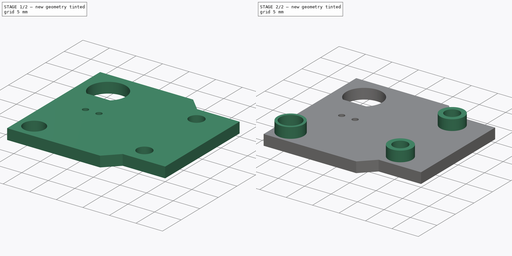
[diagram: build sequence overview — one tinted view per stage of 2, left to right]
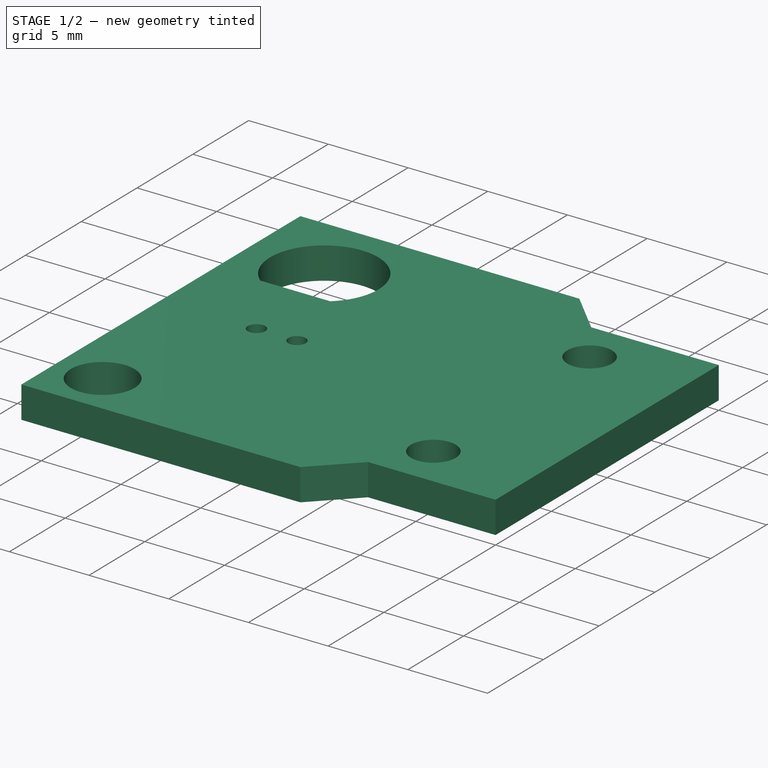
[diagram: stage 1 of 2 — iso view after this stage's code; geometry added in this stage tinted green]
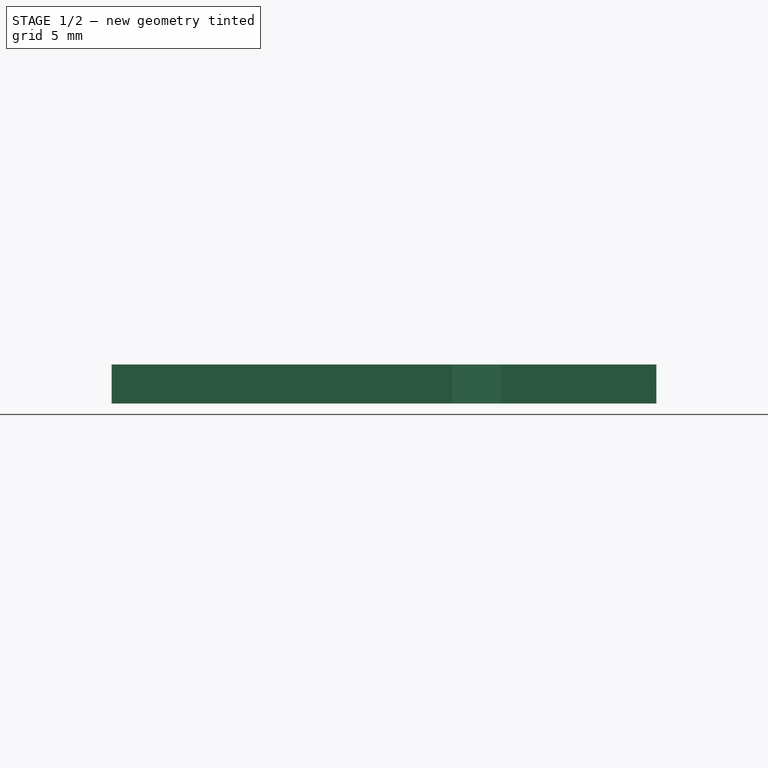
[diagram: stage 1 of 2 — front view after this stage's code; geometry added in this stage tinted green]
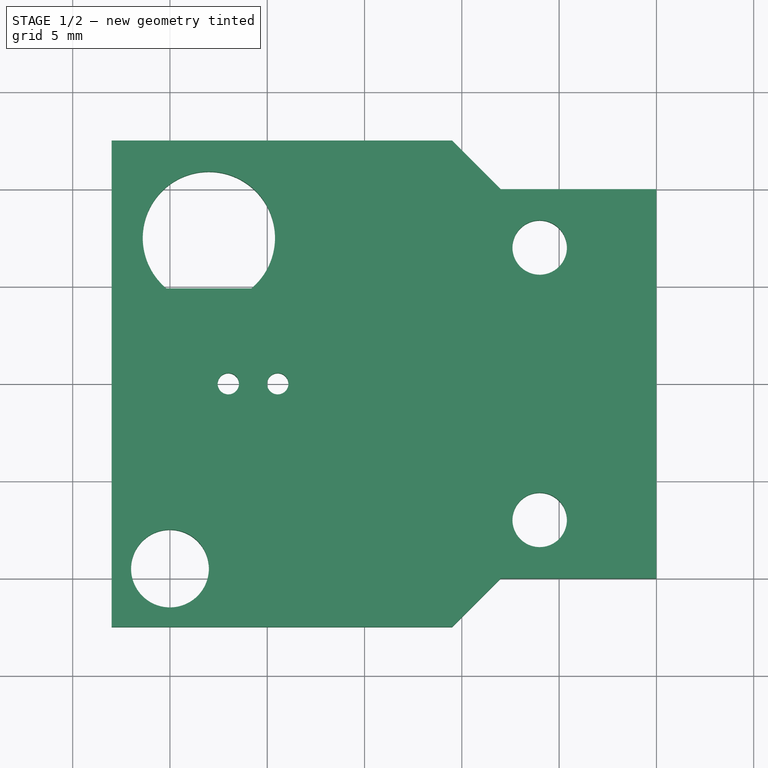
[diagram: stage 1 of 2 — top view after this stage's code; geometry added in this stage tinted green]
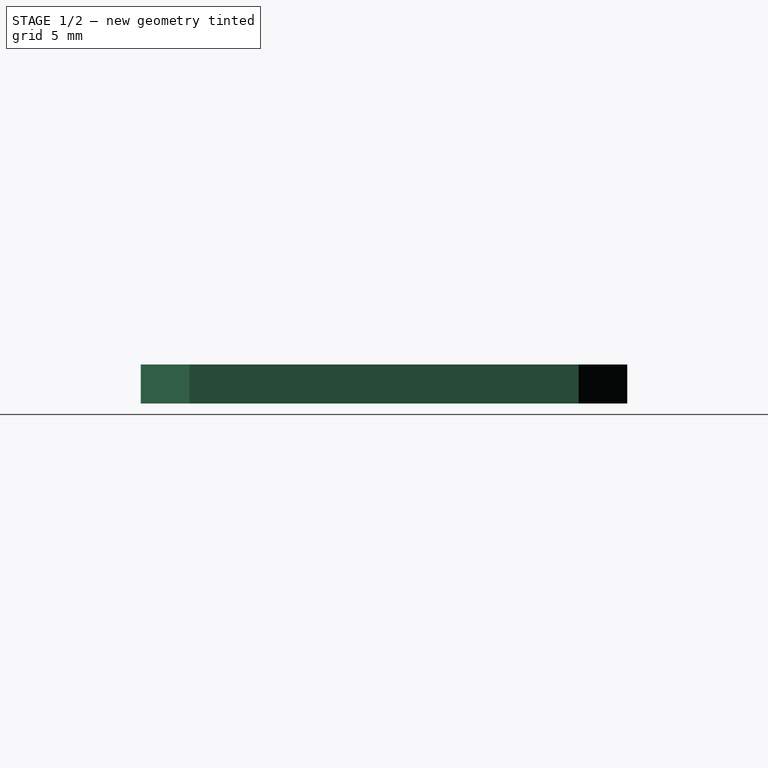
[diagram: stage 1 of 2 — right view after this stage's code; geometry added in this stage tinted green]
FCSTD DOCUMENT  (FreeCAD 0.18R4 (GitTag))
Label: LoRa-Baseplate6
License: All rights reserved
LicenseURL: http://en.wikipedia.org/wiki/All_rights_reserved
objects: Sketcher::SketchObject×2, PartDesign::Pad×2, PartDesign::Plane×1, PartDesign::Body×1
note: 8 computed .brp shape members not serialized (recipe doc carries the construction recipe); baked Part::Feature solids carry a one-line shape summary decoded from their .brp

FEATURE [Sketcher::SketchObject] Sketch
  MapMode = 5
  Support = -> [XY_Plane]
  sketch-geometry (15):
    g0: LineSegment StartX=0 StartY=10 StartZ=0 EndX=0 EndY=-10 EndZ=0
    g1: LineSegment StartX=0 StartY=-10 StartZ=0 EndX=-8 EndY=-10 EndZ=0
    g2: LineSegment StartX=-8 StartY=-10 StartZ=0 EndX=-10.5 EndY=-12.5 EndZ=0
    g3: LineSegment StartX=-10.5 StartY=-12.5 StartZ=0 EndX=-28 EndY=-12.5 EndZ=0
    g4: LineSegment StartX=-28 StartY=-12.5 StartZ=0 EndX=-28 EndY=12.5 EndZ=0
    g5: LineSegment StartX=-28 StartY=12.5 StartZ=0 EndX=-10.5 EndY=12.5 EndZ=0
    g6: LineSegment StartX=-10.5 StartY=12.5 StartZ=0 EndX=-8 EndY=10 EndZ=0
    g7: LineSegment StartX=-8 StartY=10 StartZ=0 EndX=0 EndY=10 EndZ=0
    g8: Circle CenterX=-6 CenterY=7 CenterZ=0 NormalX=0 NormalY=0 NormalZ=1 AngleXU=0 Radius=1.4
    g9: Circle CenterX=-6 CenterY=-7 CenterZ=0 NormalX=0 NormalY=0 NormalZ=1 AngleXU=0 Radius=1.4
    g10: Circle CenterX=-25 CenterY=-9.5 CenterZ=0 NormalX=0 NormalY=0 NormalZ=1 AngleXU=0 Radius=2
    g11: Circle CenterX=-22 CenterY=0 CenterZ=0 NormalX=0 NormalY=0 NormalZ=1 AngleXU=0 Radius=0.55
    g12: Circle CenterX=-19.46 CenterY=0 CenterZ=0 NormalX=0 NormalY=0 NormalZ=1 AngleXU=0 Radius=0.55
    g13: ArcOfCircle CenterX=-23 CenterY=7.5 CenterZ=0 NormalX=0 NormalY=0 NormalZ=1 AngleXU=0 Radius=3.4 StartAngle=5.4126 EndAngle=10.2954
    g14: LineSegment StartX=-25.1909 StartY=4.9 StartZ=0 EndX=-20.8091 EndY=4.9 EndZ=0
  constraints (46):
    c: PointOnObject(g0,g-2)
    c: PointOnObject(g0,g-2)
    c: Coincident(g0,g1)
    c: Horizontal(g1)
    c: Coincident(g1,g2)
    c: Coincident(g2,g3)
    c: Horizontal(g3)
    c: Coincident(g3,g4)
    c: Vertical(g4)
    c: Coincident(g4,g5)
    c: Horizontal(g5)
    c: Coincident(g5,g6)
    c: Coincident(g6,g7)
    c: Coincident(g7,g0)
    c: Parallel(g7,g1)
    c: DistanceY(g0,g0) = 20
    c: DistanceY(g0,g-1) = 10
    c: DistanceX(g1,g0) = 8
    c: Equal(g1,g7)
    c: DistanceX(g3,g1) = 20
    c: DistanceY(g4,g4) = 25
    c: Angle(g4,g6) = 0.785398
    c: Equal(g3,g5)
    c: DistanceY(g3,g-1) = 12.5
    c: Diameter(g8) = 2.8
    c: Equal(g8,g9)
    c: DistanceY(g9,g8) = 14
    c: DistanceY(g9,g-1) = 7
    c: DistanceX(g9,g0) = 6
    c: DistanceX(g8,g0) = 6
    c: Diameter(g10) = 4
    c: DistanceY(g3,g10) = 3
    c: DistanceX(g3,g10) = 3
    c: Diameter(g11) = 1.1
    c: Equal(g11,g12)
    c: DistanceX(g11,g12) = 2.54
    c: DistanceY(g-1,g12) = 0
    c: DistanceY(g12,g11) = 0
    c: DistanceX(g4,g11) = 6
    c: DistanceY(g13,g4) = 5
    c: DistanceX(g4,g13) = 5
    c: Coincident(g14,g13)
    c: Coincident(g14,g13)
    c: Parallel(g14,g5)
    c: Diameter(g13) = 6.8
    c: DistanceY(g13,g13) = 2.6
FEATURE [PartDesign::Pad] Pad
  Length = 2
  Length2 = 100
  Profile = -> Sketch
  Type = 0
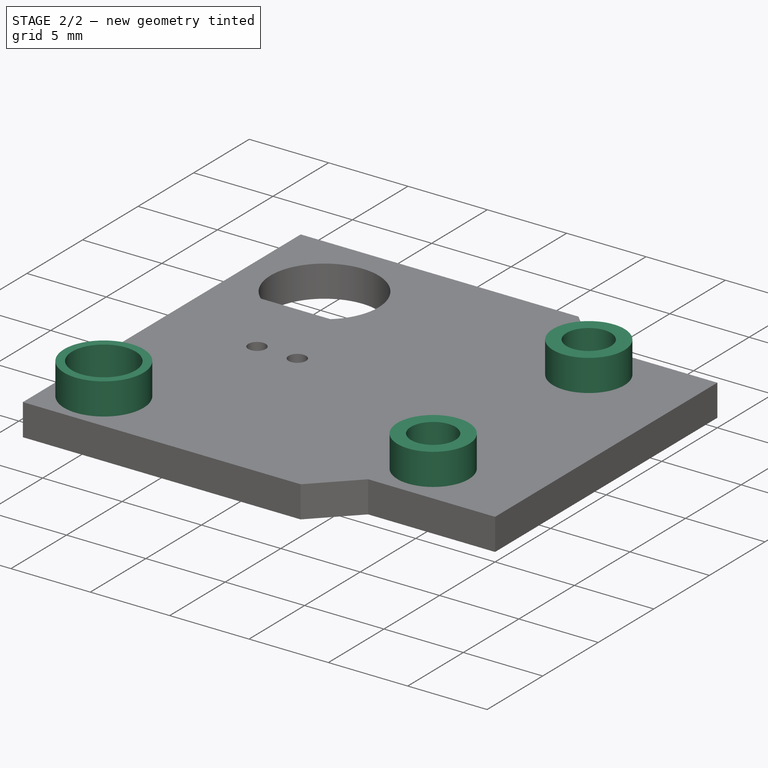
[diagram: stage 2 of 2 — iso view after this stage's code; geometry added in this stage tinted green]
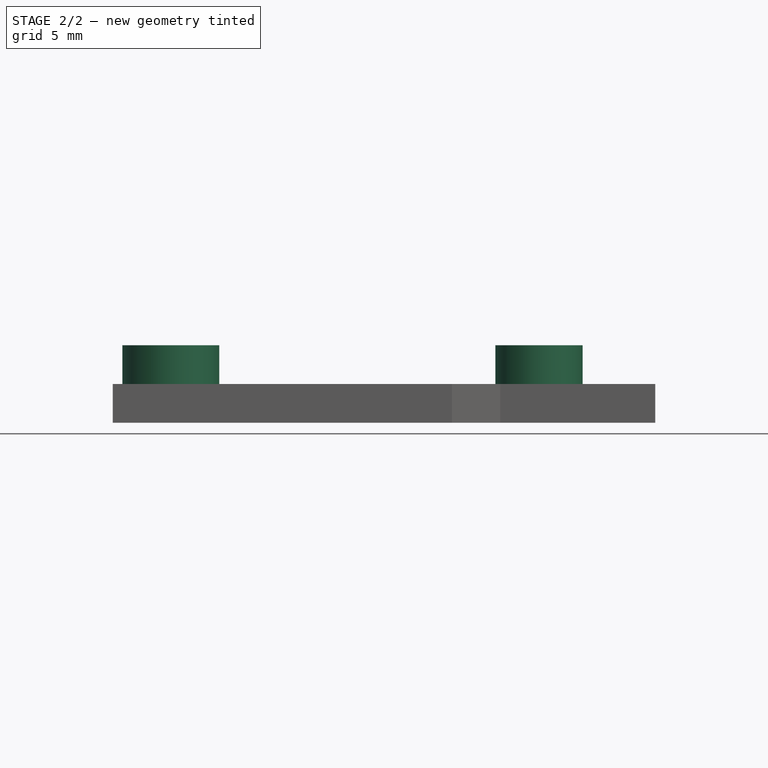
[diagram: stage 2 of 2 — front view after this stage's code; geometry added in this stage tinted green]
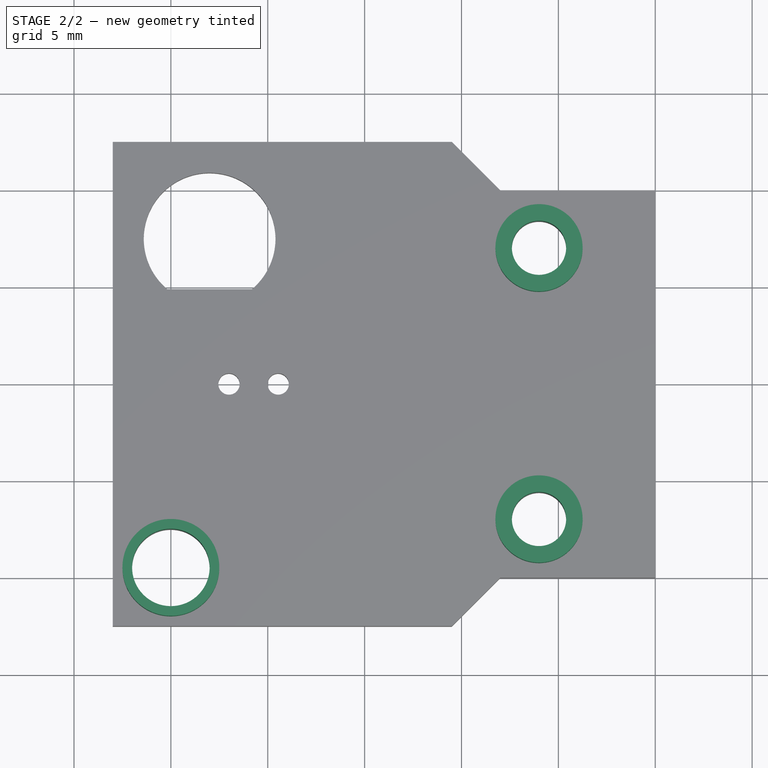
[diagram: stage 2 of 2 — top view after this stage's code; geometry added in this stage tinted green]
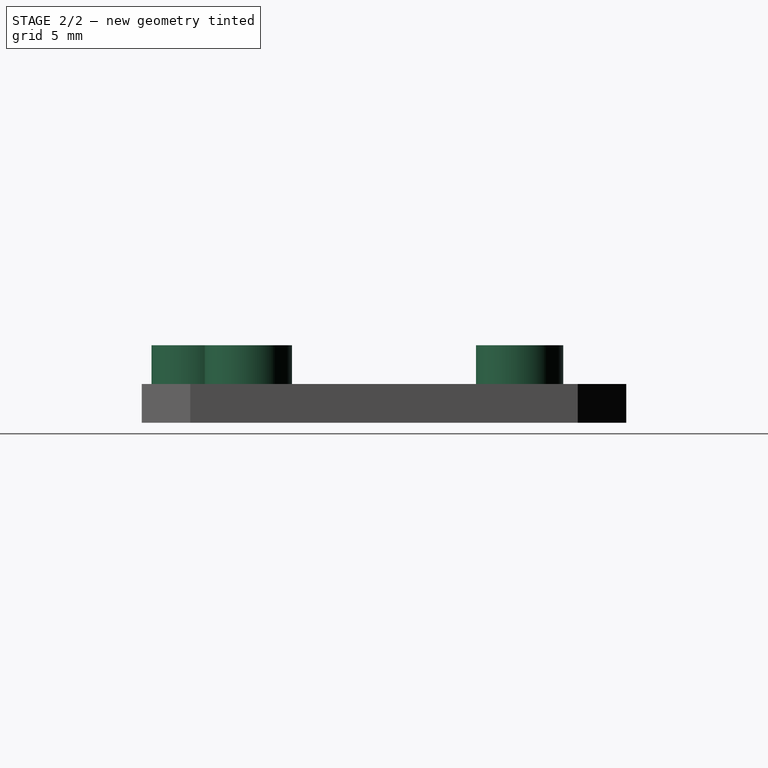
[diagram: stage 2 of 2 — right view after this stage's code; geometry added in this stage tinted green]
FEATURE [PartDesign::Plane] DatumPlane
  Length = 44.1644
  MapMode = 5
  Placement = pos=(0,0,2) rot=(0,0,1;0rad)
  ResizeMode = 0
  Support = -> [Pad]
  Width = 31.1644
FEATURE [Sketcher::SketchObject] Sketch001
  ExternalGeometry = -> [Pad]
  MapMode = 5
  Placement = pos=(0,0,2) rot=(0,0,1;0rad)
  Support = -> [DatumPlane]
  sketch-geometry (6):
    g0: Circle CenterX=-25 CenterY=-9.5 CenterZ=0 NormalX=0 NormalY=0 NormalZ=1 AngleXU=0 Radius=2
    g1: Circle CenterX=-25 CenterY=-9.5 CenterZ=0 NormalX=0 NormalY=0 NormalZ=1 AngleXU=0 Radius=2.5
    g2: Circle CenterX=-6 CenterY=-7 CenterZ=0 NormalX=0 NormalY=0 NormalZ=1 AngleXU=0 Radius=1.4
    g3: Circle CenterX=-6 CenterY=-7 CenterZ=0 NormalX=0 NormalY=0 NormalZ=1 AngleXU=0 Radius=2.25
    g4: Circle CenterX=-6 CenterY=7 CenterZ=0 NormalX=0 NormalY=0 NormalZ=1 AngleXU=0 Radius=1.4
    g5: Circle CenterX=-6 CenterY=7 CenterZ=0 NormalX=0 NormalY=0 NormalZ=1 AngleXU=0 Radius=2.25
  constraints (12):
    c: Coincident(g0,g-6)
    c: Coincident(g1,g0)
    c: Coincident(g2,g-5)
    c: Coincident(g3,g2)
    c: Coincident(g4,g-4)
    c: Coincident(g5,g4)
    c: Diameter(g4) = 2.8
    c: Diameter(g5) = 4.5
    c: Equal(g2,g4)
    c: Equal(g3,g5)
    c: Diameter(g0) = 4
    c: Diameter(g1) = 5
FEATURE [PartDesign::Pad] Pad001
  BaseFeature = -> Pad
  Length = 2
  Length2 = 100
  Profile = -> Sketch001
  Type = 0
FEATURE [PartDesign::Body] Body
  Group = -> [Sketch,Pad,DatumPlane,Sketch001,Pad001]
  Origin = -> Origin
  Tip = -> Pad001
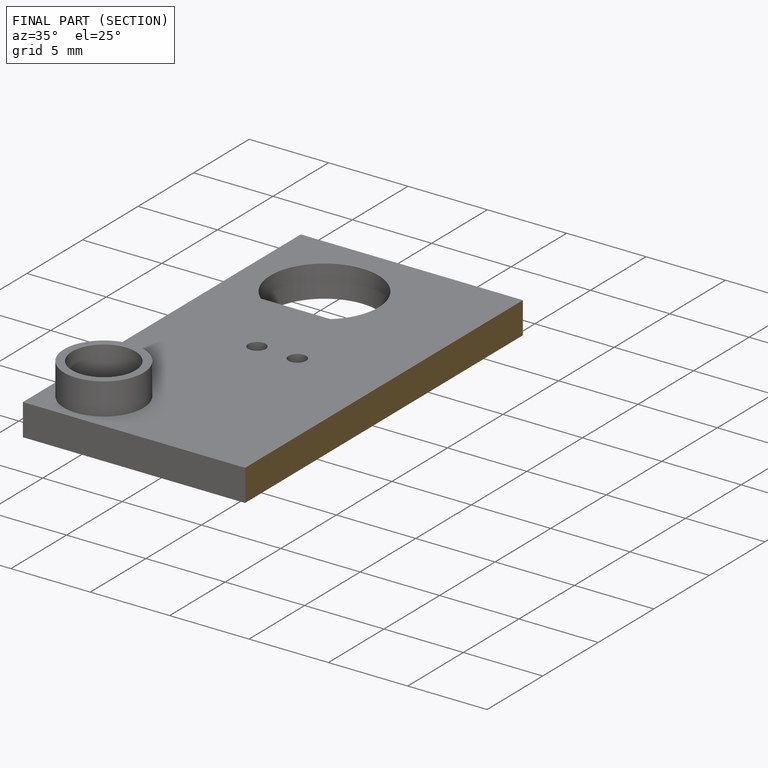
[diagram: finished part — half-section view (interior)]
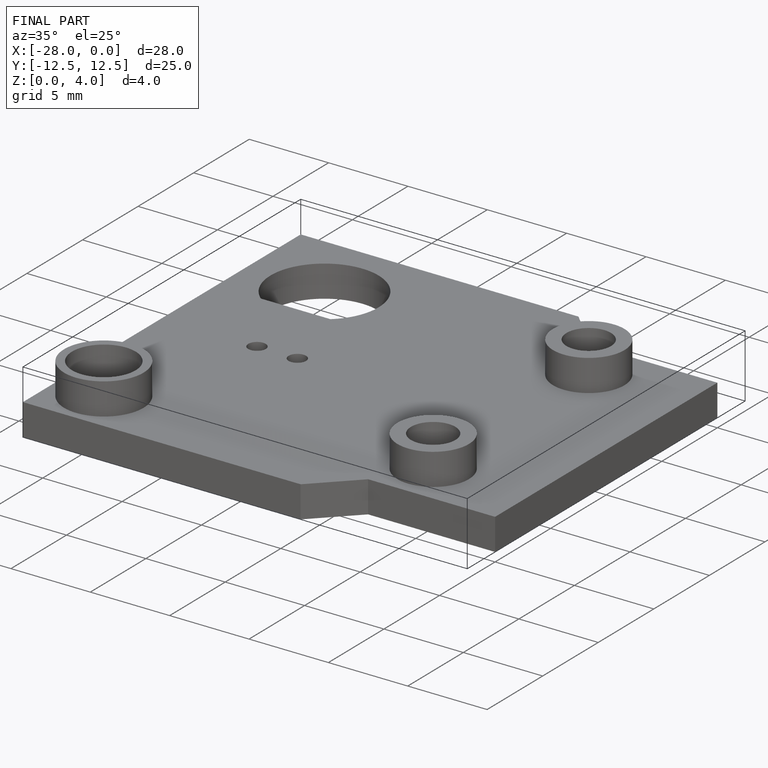
[diagram: finished part — iso view with bounding-box wireframe]
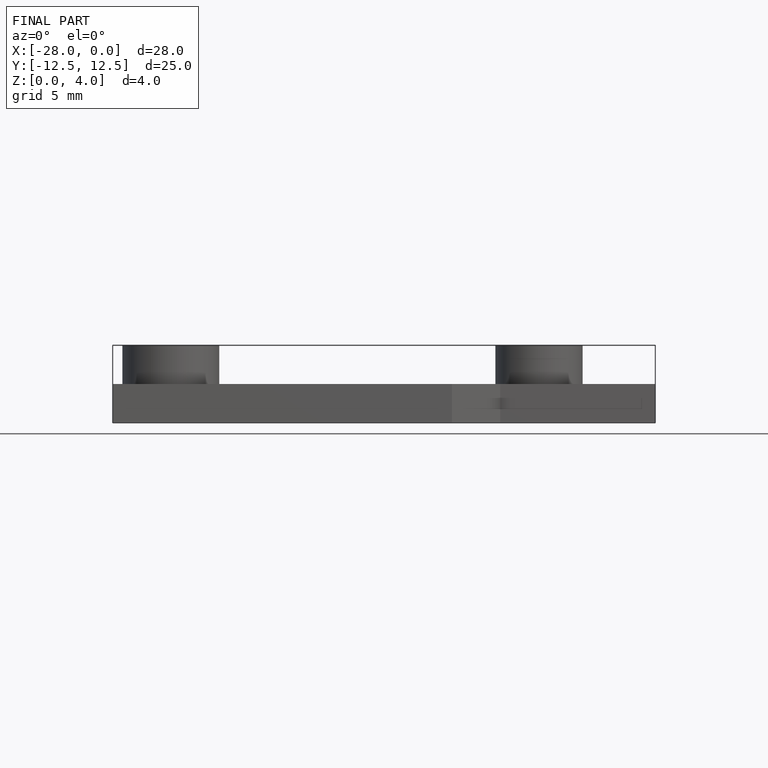
[diagram: finished part — front view with bounding-box wireframe]
